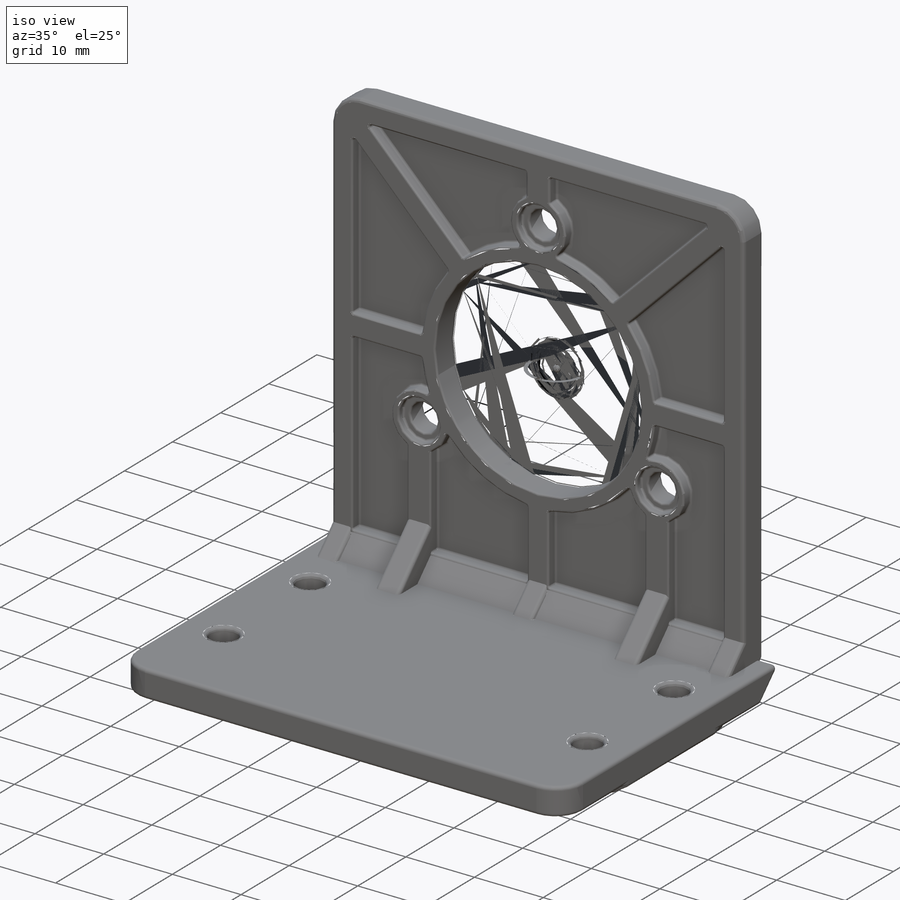
[diagram: iso view]
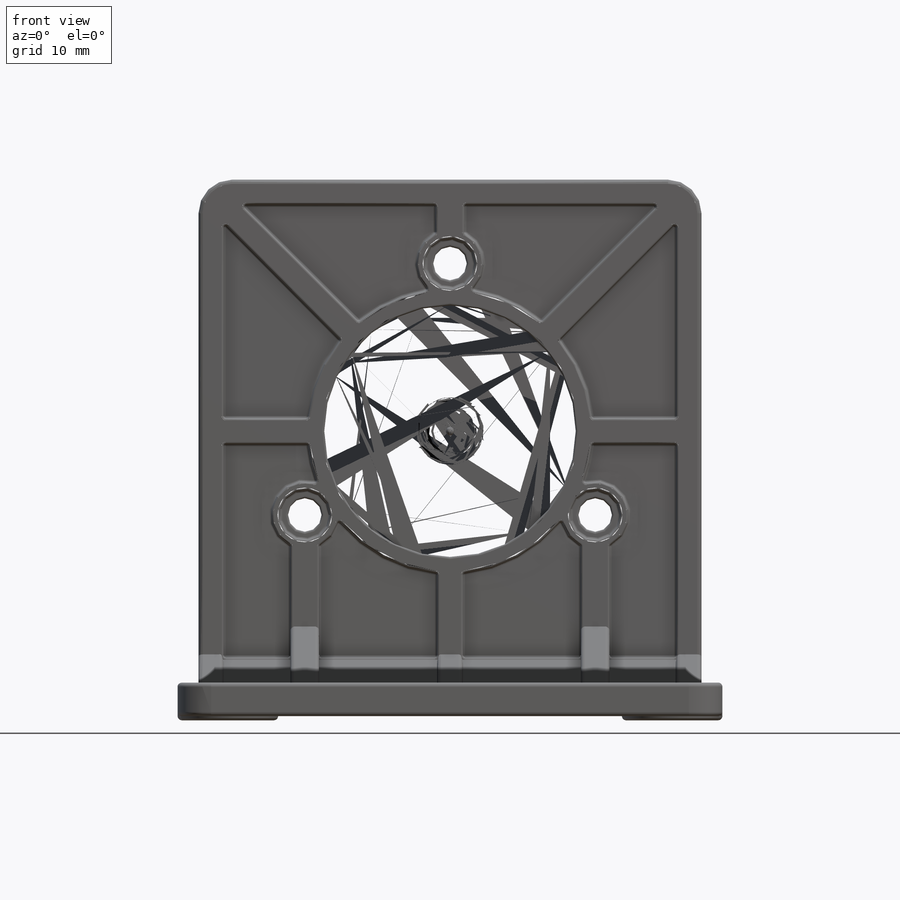
[diagram: front view]
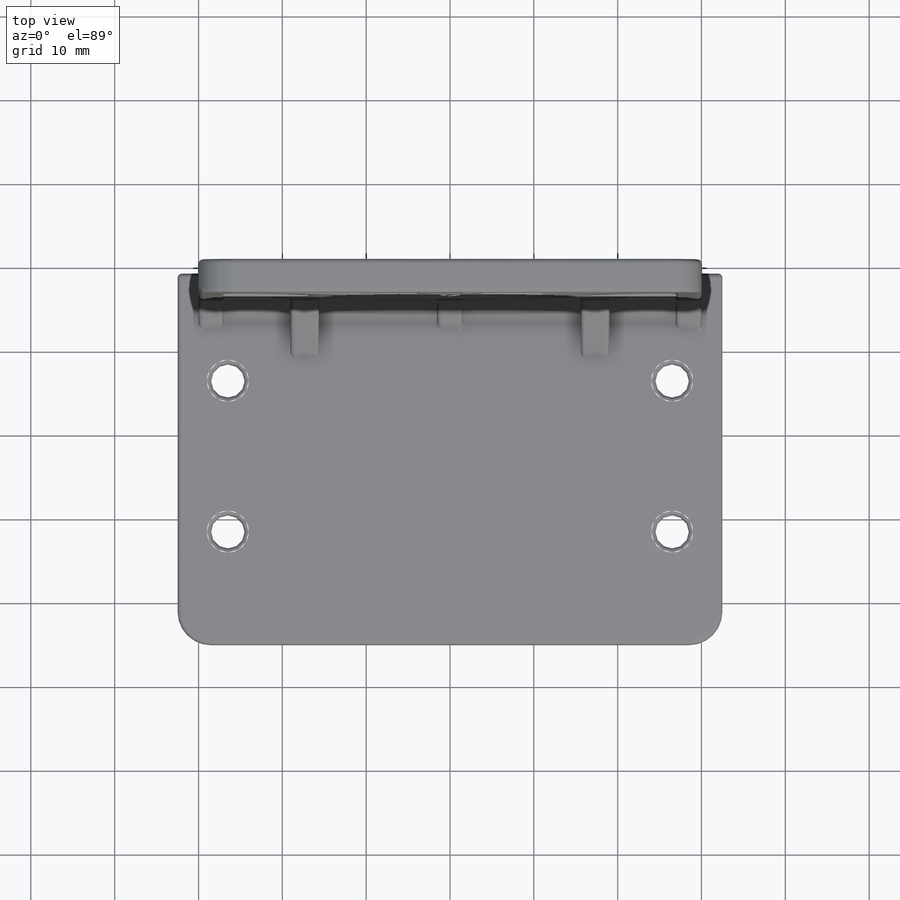
[diagram: top view]
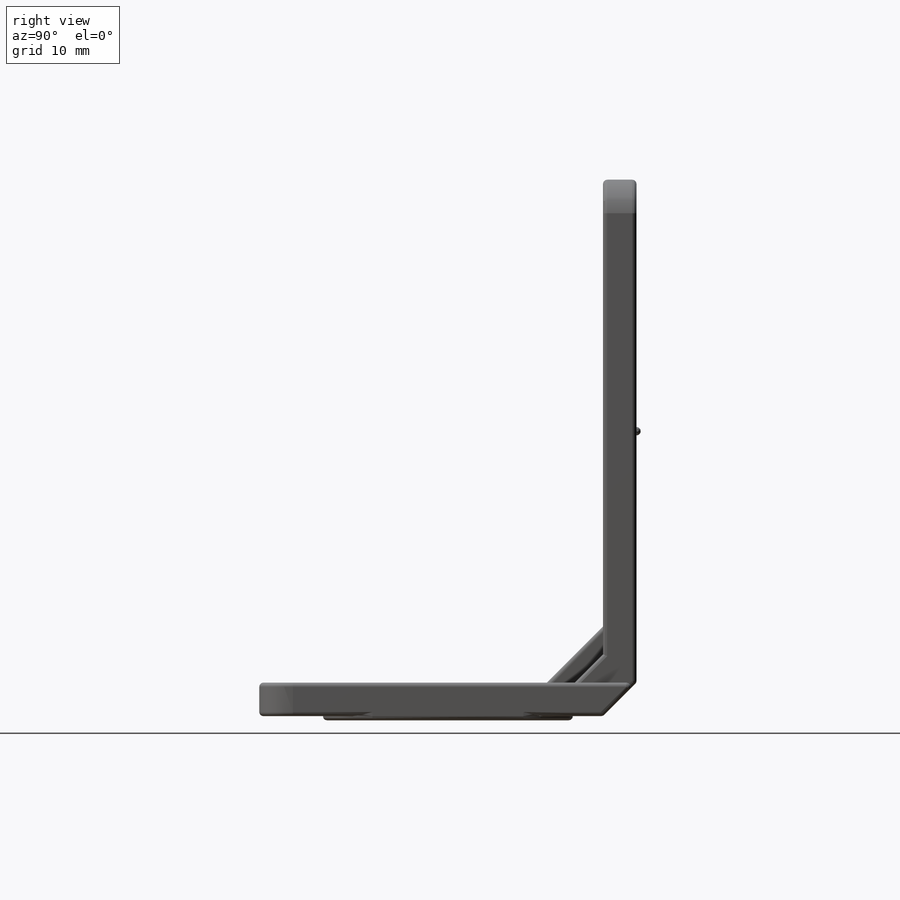
[diagram: right view]
SOLIDWORKS PART (.sldprt)
format: sldprt  version: not decoded by parser v0  size: 1,405,440 bytes
history: native  units: mm
features: fillet x20, sketch x16, extrude x9, plane x9, cut_extrude x7, material x1 (+12 scaffold rows collapsed)
feature tree (74):
  scaffold x12  (default folders/planes/origin — collapsed)
  material  "Ductile Iron"
  sketch  "Sketch1"  dims[c1.D3=~1.780323mm c1.D1=60.0mm c1.D2=60.0mm c2.D3=20.0mm c2.D4=3.0]
  extrude  "Boss-Extrude1"  Depth=4mm
  sketch  "Sketch2"  dims[D1=0.0mm D2=0.0mm D3=0.0mm D4=0.0mm D5=2.0mm D6=1.5mm D7=3.0mm]
  cut_extrude  "Cut-Extrude3"  Depth=1.5mm
  cut_extrude  "Cut-Extrude5"  [1 undecoded]
  sketch  "Sketch2<8>"  dims[D1=1.5mm]
  cut_extrude  "Cut-Extrude8"  [1 undecoded]
  sketch  "Sketch2<11>"  dims[D1=1.5mm]
  cut_extrude  "Cut-Extrude15"  [1 undecoded]
  sketch  "Sketch2<15>"  dims[D1=1.5mm]
  plane  "Plane2"  Offset=0mm
  sketch  "Sketch3"  dims[D1=1.0mm D2=1.0mm D3=1.0mm D4=0.0mm D5=0.0mm D6=0.0mm]
  cut_extrude  "Cut-Extrude16"  Depth=1mm
  fillet  "Fillet2"  Radius=0.25mm
  fillet  "Fillet4"  Radius=4mm
  plane  "Plane3"  Offset=0mm
  sketch  "Sketch5"  dims[c1.D1=45.0mm c1.D2=65.0mm c2.D1=65.0mm]
  extrude  "Boss-Extrude9"  Depth=4mm
  sketch  "Sketch6"  dims[c1.D2=6.0mm c1.D3=~3.799036mm c1.D1=12.0mm c2.D2=30.0mm]
  extrude  "Boss-Extrude10"  Depth=0.5mm
  sketch  "Sketch8"  dims[D1=0.0mm D2=0.0mm D3=0.0mm D4=0.0mm]
  cut_extrude  "Cut-Extrude17"  [1 undecoded]
  plane  "Plane5"  Offset=0mm
  sketch  "Sketch10"
  cut_extrude  "Cut-Extrude19"  [1 undecoded]
  plane  "Plane6"  Offset=2.5mm
  sketch  "Sketch16"
  extrude  "Boss-Extrude11"  Depth=60mm
  plane  "Plane10"  Offset=0mm
  sketch  "Sketch22"
  extrude  "Boss-Extrude18"  Depth=3mm
  fillet  "Fillet10"  Radius=0.5mm
  fillet  "Fillet11"  Radius=0.5mm
  plane  "Plane11"  Offset=0mm
  sketch  "Sketch23"
  extrude  "Boss-Extrude19"  Depth=3.09091mm
  fillet  "Fillet12"  Radius=0.5mm
  fillet  "Fillet13"  Radius=0.5mm
  fillet  "Fillet15"  Radius=0.5mm
  fillet  "Fillet16"  Radius=0.5mm
  fillet  "Fillet17"  Radius=0.5mm
  plane  "Plane12"  Offset=0mm
  sketch  "Sketch24"
  extrude  "Boss-Extrude20"  Depth=3.0901mm
  fillet  "Fillet18"  Radius=0.5mm
  fillet  "Fillet19"  Radius=0.5mm
  fillet  "Fillet20"  Radius=0.5mm
  fillet  "Fillet21"  Radius=0.5mm
  fillet  "Fillet22"  Radius=0.5mm
  fillet  "Fillet23"  Radius=0.5mm
  plane  "Plane13"  Offset=0mm
  sketch  "Sketch25"
  extrude  "Boss-Extrude24"  Depth=3.428571mm
  fillet  "Fillet24"  Radius=0.5mm
  fillet  "Fillet25"  Radius=0.5mm
  plane  "Plane14"  Offset=0mm
  sketch  "Sketch28"
  extrude  "Boss-Extrude25"  Depth=3.428571mm
  fillet  "Fillet26"  Radius=0.5mm
  fillet  "Fillet27"  Radius=4mm
  fillet  "Fillet28"  Radius=4mm
decode coverage: 40 of 52 modeling features carry decoded parameters
note: ~ marks probable driven/reference dimensions
note: 5 parameter values undecoded
summary: no parameter record found for 5 features
note: suppression state not decoded; provenance and decode notes live in map.json
